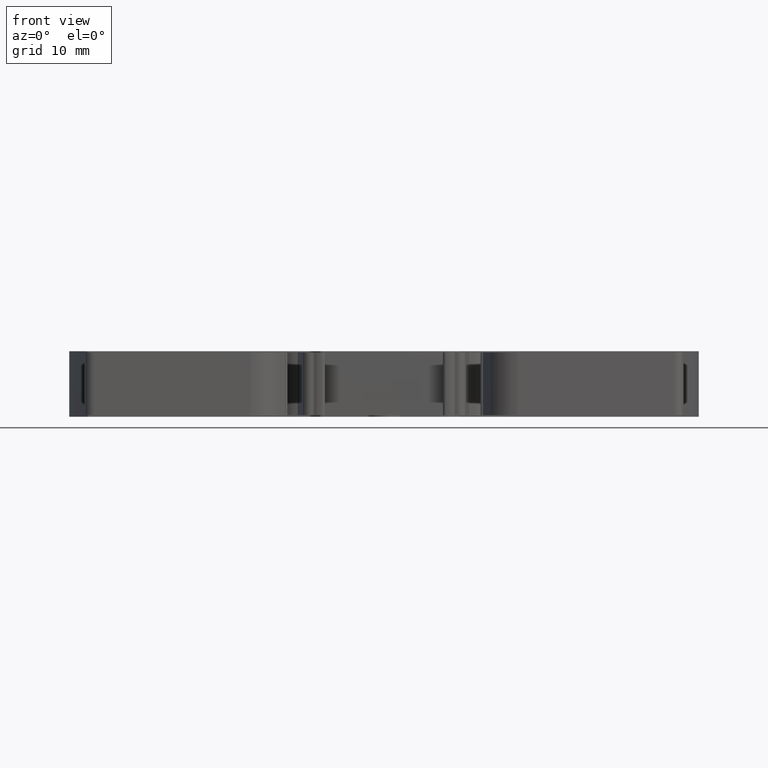
[diagram: clean part render]
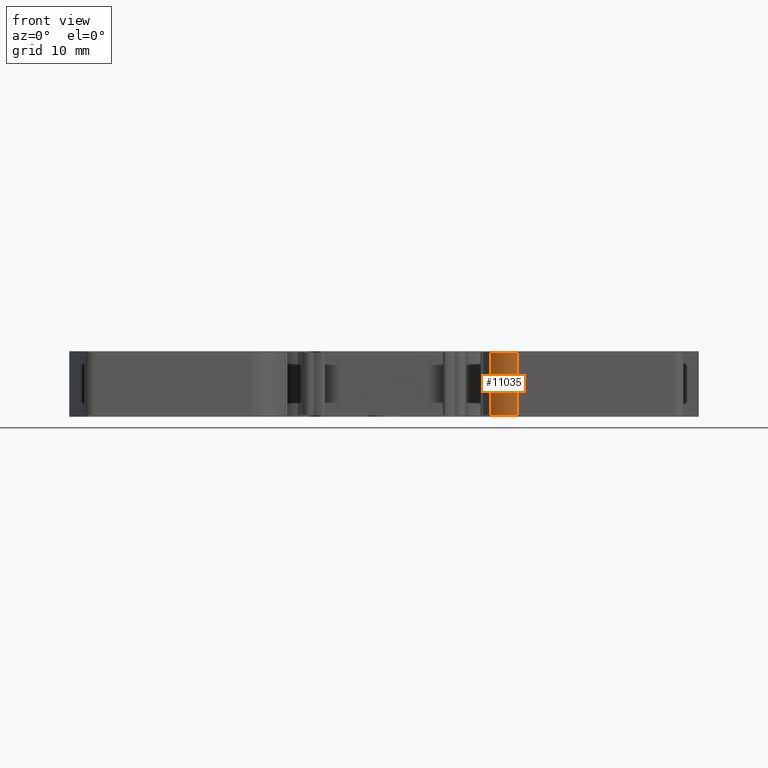
[diagram: same view with one face highlighted and labeled with its STEP entity id]
A machine part, front view. The second image highlights one B-rep face of the part: STEP entity #11035.
In plain terms, the highlighted cylindrical surface (edge-blend (fillet) strip) has radius 5 mm, axis along (0, 0, -1).
Its self-contained STEP definition (entity closure, byte-faithful):
#970 = CARTESIAN_POINT ( 'NONE',  ( 1351.807268331745900, 399.0762368409454600, 10.40000000000000000 ) ) ;
#979 = DIRECTION ( 'NONE',  ( 1.000000000000000000, -1.110223024625180200E-014, 0.0000000000000000000 ) ) ;
#1003 = DIRECTION ( 'NONE',  ( -0.0000000000000000000, -0.0000000000000000000, -1.000000000000000000 ) ) ;
#1823 = AXIS2_PLACEMENT_3D ( 'NONE', #14996, #15000, #15002 ) ;
#4553 = CIRCLE ( 'NONE', #4555, 4.999999999999893400 ) ;
#4554 = VECTOR ( 'NONE', #6584, 1000.000000000000000 ) ;
#4555 = AXIS2_PLACEMENT_3D ( 'NONE', #6580, #6578, #6553 ) ;
#4562 = VECTOR ( 'NONE', #10518, 1000.000000000000000 ) ;
#5353 = EDGE_LOOP ( 'NONE', ( #14043, #14039, #13997, #14002 ) ) ;
#6051 = VERTEX_POINT ( 'NONE', #7541 ) ;
#6181 = VERTEX_POINT ( 'NONE', #7637 ) ;
#6553 = DIRECTION ( 'NONE',  ( -1.000000000000000000, -1.110223024625180200E-014, 0.0000000000000000000 ) ) ;
#6569 = CARTESIAN_POINT ( 'NONE',  ( 1347.477143735460000, 396.5762326448234500, 10.50000000000000000 ) ) ;
#6578 = DIRECTION ( 'NONE',  ( -0.0000000000000000000, -0.0000000000000000000, 1.000000000000000000 ) ) ;
#6580 = CARTESIAN_POINT ( 'NONE',  ( 1351.807268331745900, 399.0762368409454600, 0.1500000000000008300 ) ) ;
#6584 = DIRECTION ( 'NONE',  ( 0.0000000000000000000, 0.0000000000000000000, -1.000000000000000000 ) ) ;
#6593 = LINE ( 'NONE', #6569, #4554 ) ;
#7541 = CARTESIAN_POINT ( 'NONE',  ( 1351.807268331748000, 394.0762368409455100, 10.40000000000000000 ) ) ;
#7637 = CARTESIAN_POINT ( 'NONE',  ( 1347.477143735460000, 396.5762326448234500, 10.40000000000000000 ) ) ;
#10211 = CARTESIAN_POINT ( 'NONE',  ( 1351.807268331748000, 394.0762368409455100, 0.1500000000000008300 ) ) ;
#10220 = CARTESIAN_POINT ( 'NONE',  ( 1347.477143735460000, 396.5762326448234500, 0.1500000000000008300 ) ) ;
#10517 = CARTESIAN_POINT ( 'NONE',  ( 1351.807268331748000, 394.0762368409455100, 10.50000000000000000 ) ) ;
#10518 = DIRECTION ( 'NONE',  ( 0.0000000000000000000, 0.0000000000000000000, -1.000000000000000000 ) ) ;
#10528 = LINE ( 'NONE', #10517, #4562 ) ;
#10947 = CIRCLE ( 'NONE', #10948, 4.999999999999893400 ) ;
#10948 = AXIS2_PLACEMENT_3D ( 'NONE', #970, #1003, #979 ) ;
#11035 = ADVANCED_FACE ( 'NONE', ( #15020 ), #14994, .T. ) ;
#12997 = EDGE_CURVE ( 'NONE', #6051, #6181, #10947, .T. ) ;
#13371 = EDGE_CURVE ( 'NONE', #6181, #14224, #6593, .T. ) ;
#13372 = EDGE_CURVE ( 'NONE', #14224, #14238, #4553, .T. ) ;
#13384 = EDGE_CURVE ( 'NONE', #6051, #14238, #10528, .T. ) ;
#13997 = ORIENTED_EDGE ( 'NONE', *, *, #13371, .T. ) ;
#14002 = ORIENTED_EDGE ( 'NONE', *, *, #13372, .T. ) ;
#14039 = ORIENTED_EDGE ( 'NONE', *, *, #12997, .T. ) ;
#14043 = ORIENTED_EDGE ( 'NONE', *, *, #13384, .F. ) ;
#14224 = VERTEX_POINT ( 'NONE', #10220 ) ;
#14238 = VERTEX_POINT ( 'NONE', #10211 ) ;
#14994 = CYLINDRICAL_SURFACE ( 'NONE', #1823, 4.999999999999893400 ) ;
#14996 = CARTESIAN_POINT ( 'NONE',  ( 1351.807268331745900, 399.0762368409454600, 10.50000000000000000 ) ) ;
#15000 = DIRECTION ( 'NONE',  ( 0.0000000000000000000, 0.0000000000000000000, -1.000000000000000000 ) ) ;
#15002 = DIRECTION ( 'NONE',  ( 1.000000000000000000, 0.0000000000000000000, 0.0000000000000000000 ) ) ;
#15020 = FACE_OUTER_BOUND ( 'NONE', #5353, .T. ) ;